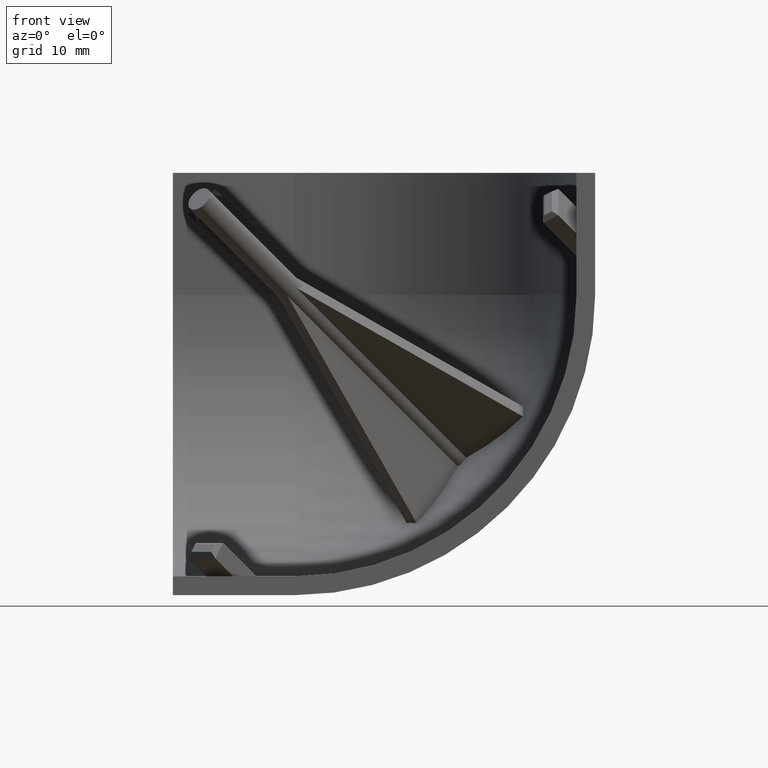
[diagram: clean part render]
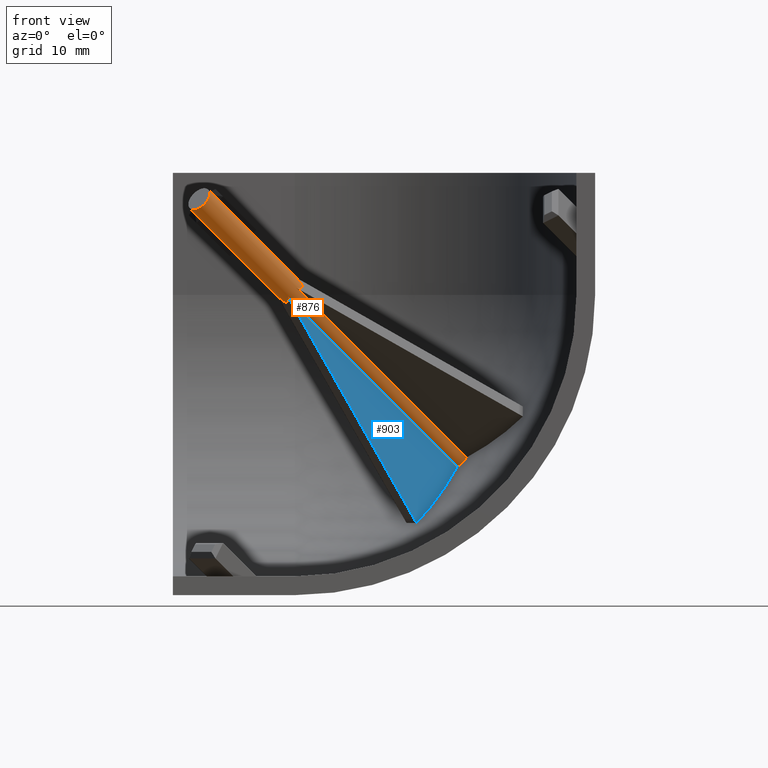
[diagram: same view with the hole feature highlighted: cylindrical wall and planar end face, labeled with their STEP entity ids]
A machine part, front view. The highlighted faces form one hole feature of diameter 2.8 mm: the cylindrical wall (entity #876, orange) and its adjacent planar end face (entity #903, blue) — they share a circular edge in the B-rep.
Wall:
#63=FACE_BOUND('',#325,.T.);
#68=LINE('',#1291,#167);
#69=LINE('',#1295,#168);
#70=LINE('',#1299,#169);
#71=LINE('',#1303,#170);
#72=LINE('',#1307,#171);
#73=LINE('',#1310,#172);
#167=VECTOR('',#1024,31.3487743008794);
#168=VECTOR('',#1027,31.3487742680335);
#169=VECTOR('',#1030,31.3487743130592);
#170=VECTOR('',#1033,31.348774313059);
#171=VECTOR('',#1036,31.3487743130594);
#172=VECTOR('',#1039,31.3487743130592);
#266=ELLIPSE('',#935,5.09339588938347,1.40000009909664);
#267=ELLIPSE('',#937,5.09339619645517,1.40000015972746);
#268=ELLIPSE('',#939,5.09339540071324,1.40000000000002);
#269=FACE_OUTER_BOUND('',#324,.T.);
#324=EDGE_LOOP('',(#615));
#325=EDGE_LOOP('',(#616,#617,#618,#619,#620,#621,#622,#623,#624,#625,#626,
#627));
#384=CIRCLE('',#934,1.4);
#385=CIRCLE('',#936,1.4);
#386=CIRCLE('',#938,1.4);
#387=CIRCLE('',#940,1.4);
#409=VERTEX_POINT('',#1285);
#410=VERTEX_POINT('',#1287);
#411=VERTEX_POINT('',#1288);
#412=VERTEX_POINT('',#1290);
#413=VERTEX_POINT('',#1292);
#414=VERTEX_POINT('',#1294);
#415=VERTEX_POINT('',#1296);
#416=VERTEX_POINT('',#1298);
#417=VERTEX_POINT('',#1300);
#418=VERTEX_POINT('',#1302);
#419=VERTEX_POINT('',#1304);
#420=VERTEX_POINT('',#1306);
#421=VERTEX_POINT('',#1308);
#488=EDGE_CURVE('',#409,#409,#384,.T.);
#489=EDGE_CURVE('',#410,#411,#266,.T.);
#490=EDGE_CURVE('',#410,#412,#68,.T.);
#491=EDGE_CURVE('',#413,#412,#385,.T.);
#492=EDGE_CURVE('',#414,#413,#69,.T.);
#493=EDGE_CURVE('',#415,#414,#267,.T.);
#494=EDGE_CURVE('',#415,#416,#70,.T.);
#495=EDGE_CURVE('',#417,#416,#386,.T.);
#496=EDGE_CURVE('',#418,#417,#71,.T.);
#497=EDGE_CURVE('',#419,#418,#268,.T.);
#498=EDGE_CURVE('',#419,#420,#72,.T.);
#499=EDGE_CURVE('',#421,#420,#387,.T.);
#500=EDGE_CURVE('',#411,#421,#73,.T.);
#615=ORIENTED_EDGE('',*,*,#488,.T.);
#616=ORIENTED_EDGE('',*,*,#489,.F.);
#617=ORIENTED_EDGE('',*,*,#490,.T.);
#618=ORIENTED_EDGE('',*,*,#491,.F.);
#619=ORIENTED_EDGE('',*,*,#492,.F.);
#620=ORIENTED_EDGE('',*,*,#493,.F.);
#621=ORIENTED_EDGE('',*,*,#494,.T.);
#622=ORIENTED_EDGE('',*,*,#495,.F.);
#623=ORIENTED_EDGE('',*,*,#496,.F.);
#624=ORIENTED_EDGE('',*,*,#497,.F.);
#625=ORIENTED_EDGE('',*,*,#498,.T.);
#626=ORIENTED_EDGE('',*,*,#499,.F.);
#627=ORIENTED_EDGE('',*,*,#500,.F.);
#869=CYLINDRICAL_SURFACE('',#933,1.4);
#876=ADVANCED_FACE('',(#269,#63),#869,.T.);
#933=AXIS2_PLACEMENT_3D('',#1284,#1018,#1019);
#934=AXIS2_PLACEMENT_3D('',#1286,#1020,#1021);
#935=AXIS2_PLACEMENT_3D('',#1289,#1022,#1023);
#936=AXIS2_PLACEMENT_3D('',#1293,#1025,#1026);
#937=AXIS2_PLACEMENT_3D('',#1297,#1028,#1029);
#938=AXIS2_PLACEMENT_3D('',#1301,#1031,#1032);
#939=AXIS2_PLACEMENT_3D('',#1305,#1034,#1035);
#940=AXIS2_PLACEMENT_3D('',#1309,#1037,#1038);
#1018=DIRECTION('center_axis',(0.577350269189624,0.577350269189624,-0.57735026918963));
#1019=DIRECTION('ref_axis',(-0.707106781186551,-6.40987562127853E-17,-0.707106781186544));
#1020=DIRECTION('center_axis',(0.577350269189624,0.577350269189624,-0.57735026918963));
#1021=DIRECTION('ref_axis',(-0.707106781186551,-6.40987562127853E-17,-0.707106781186544));
#1022=DIRECTION('center_axis',(0.551217453555649,0.551217453556672,0.626353444781877));
#1023=DIRECTION('ref_axis',(-0.442898757804549,-0.44289877864509,0.779539198635884));
#1024=DIRECTION('',(0.577350269189624,0.577350269189624,-0.57735026918963));
#1025=DIRECTION('center_axis',(0.577350269189624,0.577350269189624,-0.57735026918963));
#1026=DIRECTION('ref_axis',(0.707106781186551,6.40987562127852E-17,0.707106781186544));
#1027=DIRECTION('',(0.577350269189624,0.577350269189624,-0.57735026918963));
#1028=DIRECTION('center_axis',(-0.626353444778685,0.551217453564603,-0.551217453551345));
#1029=DIRECTION('ref_axis',(0.779539198638448,0.442898784973294,-0.44289875147183));
#1030=DIRECTION('',(0.577350269189624,0.577350269189624,-0.57735026918963));
#1031=DIRECTION('center_axis',(0.577350269189624,0.577350269189624,-0.57735026918963));
#1032=DIRECTION('ref_axis',(0.707106781186551,6.40987562127852E-17,0.707106781186544));
#1033=DIRECTION('',(0.577350269189624,0.577350269189624,-0.57735026918963));
#1034=DIRECTION('center_axis',(0.551217453556038,-0.626353444782071,-0.551217453556063));
#1035=DIRECTION('ref_axis',(0.442898768224948,0.779539198635728,-0.442898768224964));
#1036=DIRECTION('',(0.577350269189624,0.577350269189624,-0.57735026918963));
#1037=DIRECTION('center_axis',(0.577350269189624,0.577350269189624,-0.57735026918963));
#1038=DIRECTION('ref_axis',(0.70710678118655,1.70899131969916E-15,0.707106781186545));
#1039=DIRECTION('',(0.577350269189624,0.577350269189624,-0.57735026918963));
#1284=CARTESIAN_POINT('Origin',(2.78632794954076,2.78632794954076,-2.7863279495408));
#1285=CARTESIAN_POINT('',(1.79637845587959,2.78632794954076,-3.77627744320196));
#1286=CARTESIAN_POINT('Origin',(2.78632794954076,2.78632794954076,-2.7863279495408));
#1287=CARTESIAN_POINT('',(12.2501300915973,11.1894699023155,-13.1676432237397));
#1288=CARTESIAN_POINT('',(11.1894699051099,12.2501300768897,-13.167643214557));
#1289=CARTESIAN_POINT('Origin',(9.81495442009279,9.81495430496123,-9.81495420009717));
#1290=CARTESIAN_POINT('',(30.3493533652992,29.2886931935193,-31.2668665029666));
#1291=CARTESIAN_POINT('',(12.2501300768897,11.1894699051098,-13.1676432145569));
#1292=CARTESIAN_POINT('',(31.2668665029663,29.2886931935194,-30.3493533652995));
#1293=CARTESIAN_POINT('Origin',(30.3016376872806,30.3016376872806,-30.3016376872239));
#1294=CARTESIAN_POINT('',(13.1676432478459,11.1894699161628,-12.2501301105347));
#1295=CARTESIAN_POINT('',(13.167643214557,11.18946990511,-12.2501300768899));
#1296=CARTESIAN_POINT('',(13.1676432145568,12.2501300768897,-11.1894699051099));
#1297=CARTESIAN_POINT('Origin',(9.81495396323283,9.81495413591604,-9.81495432003085));
#1298=CARTESIAN_POINT('',(31.2668665029663,30.3493533652992,-29.2886931935196));
#1299=CARTESIAN_POINT('',(13.1676432145568,12.2501300768897,-11.18946990511));
#1300=CARTESIAN_POINT('',(30.3493533652992,31.2668665029663,-29.2886931935197));
#1301=CARTESIAN_POINT('Origin',(30.3016376872806,30.3016376872806,-30.3016376872239));
#1302=CARTESIAN_POINT('',(12.2501300768897,13.1676432145569,-11.1894699051101));
#1303=CARTESIAN_POINT('',(12.2501300768898,13.1676432145569,-11.1894699051101));
#1304=CARTESIAN_POINT('',(11.1894699051097,13.1676432145567,-12.2501300768898));
#1305=CARTESIAN_POINT('Origin',(9.81495457622345,9.81495457622326,-9.81495457622348));
#1306=CARTESIAN_POINT('',(29.2886931935194,31.2668665029663,-30.3493533652995));
#1307=CARTESIAN_POINT('',(11.1894699051098,13.1676432145567,-12.2501300768897));
#1308=CARTESIAN_POINT('',(29.2886931935194,30.3493533652991,-31.2668665029666));
#1309=CARTESIAN_POINT('Origin',(30.3016376872806,30.3016376872806,-30.3016376872239));
#1310=CARTESIAN_POINT('',(11.1894699051099,12.2501300768897,-13.167643214557));
End face:
#33=PLANE('',#988);
#68=LINE('',#1291,#167);
#117=LINE('',#1442,#216);
#167=VECTOR('',#1024,31.3487743008794);
#216=VECTOR('',#1175,30.9555790635604);
#296=FACE_OUTER_BOUND('',#356,.T.);
#356=EDGE_LOOP('',(#758,#759,#760));
#399=CIRCLE('',#953,29.9906235346983);
#410=VERTEX_POINT('',#1287);
#412=VERTEX_POINT('',#1290);
#425=VERTEX_POINT('',#1318);
#490=EDGE_CURVE('',#410,#412,#68,.T.);
#512=EDGE_CURVE('',#425,#412,#399,.T.);
#565=EDGE_CURVE('',#410,#425,#117,.T.);
#758=ORIENTED_EDGE('',*,*,#565,.T.);
#759=ORIENTED_EDGE('',*,*,#512,.T.);
#760=ORIENTED_EDGE('',*,*,#490,.F.);
#903=ADVANCED_FACE('',(#296),#33,.F.);
#953=AXIS2_PLACEMENT_3D('',#1332,#1064,#1065);
#988=AXIS2_PLACEMENT_3D('',#1445,#1179,#1180);
#1024=DIRECTION('',(0.577350269189624,0.577350269189624,-0.57735026918963));
#1064=DIRECTION('center_axis',(0.707106781186543,-0.707106781186552,-1.30843890190042E-15));
#1065=DIRECTION('ref_axis',(-0.707106781186552,-0.707106781186543,3.52837385698756E-15));
#1175=DIRECTION('',(0.442898768224957,0.442898768224954,-0.779539198635729));
#1179=DIRECTION('center_axis',(-0.707106781186543,0.707106781186552,1.30843890190042E-15));
#1180=DIRECTION('ref_axis',(2.1316282072803E-15,0.,1.));
#1287=CARTESIAN_POINT('',(12.2501300915973,11.1894699023155,-13.1676432237397));
#1290=CARTESIAN_POINT('',(30.3493533652992,29.2886931935193,-31.2668665029666));
#1291=CARTESIAN_POINT('',(12.2501300768897,11.1894699051098,-13.1676432145569));
#1318=CARTESIAN_POINT('',(25.9603179193382,24.8996577475581,-37.298730520763));
#1332=CARTESIAN_POINT('Origin',(13.53033008589,12.46966991411,-13.));
#1442=CARTESIAN_POINT('',(12.2501300768897,11.1894699051098,-13.1676432145569));
#1445=CARTESIAN_POINT('Origin',(43.8326876228925,42.7720274511119,-29.7397525875473));